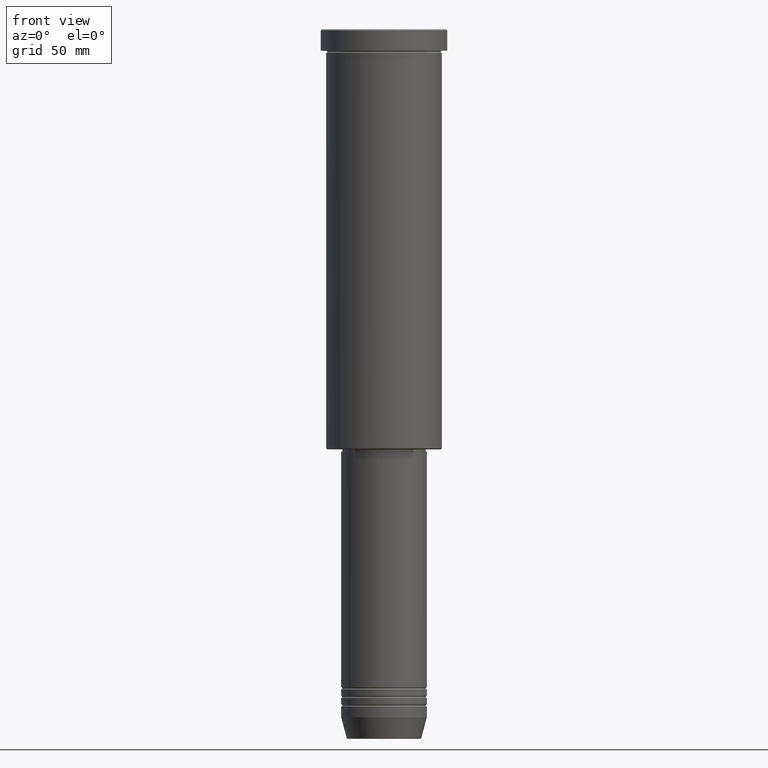
[diagram: clean part render]
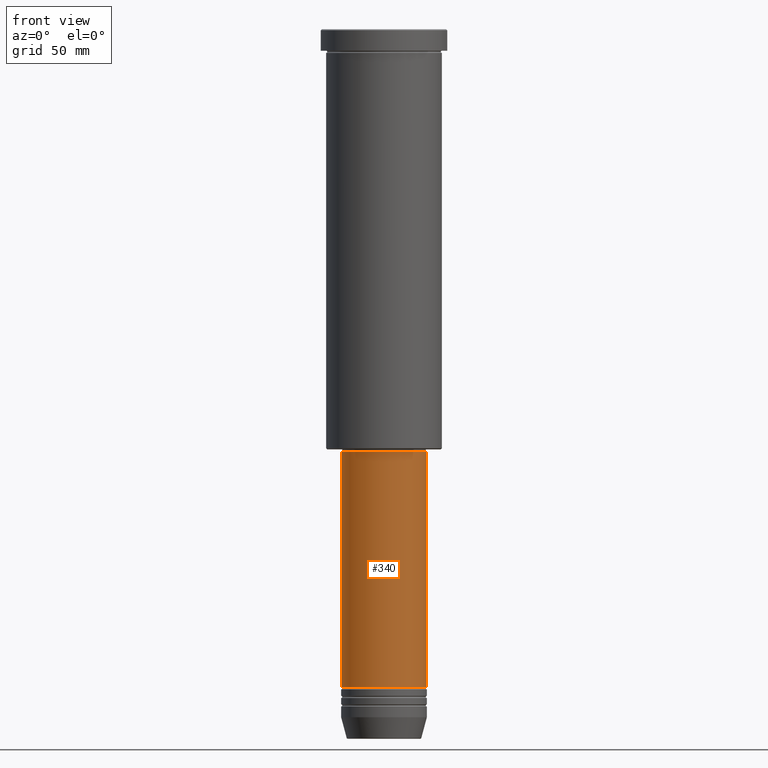
[diagram: same view with one face highlighted and labeled with its STEP entity id]
A machine part, front view. The second image highlights one B-rep face of the part: STEP entity #340.
In plain terms, the highlighted cylindrical surface (partial cylindrical patch) has radius 20 mm, axis along (-0, -0, 1).
Its self-contained STEP definition (entity closure, byte-faithful):
#31 = DIRECTION ( 'NONE',  ( 1.000000000000000000, 0.000000000000000000, 0.000000000000000000 ) ) ;
#63 = CARTESIAN_POINT ( 'NONE',  ( 19.99999999999999645, 0.000000000000000000, 0.000000000000000000 ) ) ;
#77 = DIRECTION ( 'NONE',  ( 1.000000000000000000, 0.000000000000000000, 0.000000000000000000 ) ) ;
#79 = VERTEX_POINT ( 'NONE', #936 ) ;
#93 = AXIS2_PLACEMENT_3D ( 'NONE', #624, #517, #77 ) ;
#216 = FACE_OUTER_BOUND ( 'NONE', #408, .T. ) ;
#217 = CIRCLE ( 'NONE', #93, 20.00000000000000000 ) ;
#261 = EDGE_CURVE ( 'NONE', #79, #1009, #991, .T. ) ;
#263 = VERTEX_POINT ( 'NONE', #1051 ) ;
#303 = CARTESIAN_POINT ( 'NONE',  ( -20.00000000000000000, 2.449293598294706513E-15, -306.9999999999999432 ) ) ;
#340 = ADVANCED_FACE ( 'NONE', ( #216 ), #472, .T. ) ;
#389 = CARTESIAN_POINT ( 'NONE',  ( 0.000000000000000000, 0.000000000000000000, -196.9999999999999147 ) ) ;
#408 = EDGE_LOOP ( 'NONE', ( #832, #810, #817, #578 ) ) ;
#410 = DIRECTION ( 'NONE',  ( -0.000000000000000000, -0.000000000000000000, 1.000000000000000000 ) ) ;
#418 = AXIS2_PLACEMENT_3D ( 'NONE', #389, #682, #858 ) ;
#472 = CYLINDRICAL_SURFACE ( 'NONE', #733, 19.99999999999999645 ) ;
#488 = LINE ( 'NONE', #63, #1064 ) ;
#517 = DIRECTION ( 'NONE',  ( -0.000000000000000000, -0.000000000000000000, 1.000000000000000000 ) ) ;
#521 = DIRECTION ( 'NONE',  ( -0.000000000000000000, -0.000000000000000000, 1.000000000000000000 ) ) ;
#559 = CARTESIAN_POINT ( 'NONE',  ( 19.99999999999999645, 0.000000000000000000, -196.9999999999999147 ) ) ;
#577 = DIRECTION ( 'NONE',  ( -0.000000000000000000, -0.000000000000000000, 1.000000000000000000 ) ) ;
#578 = ORIENTED_EDGE ( 'NONE', *, *, #261, .F. ) ;
#579 = VERTEX_POINT ( 'NONE', #303 ) ;
#618 = CARTESIAN_POINT ( 'NONE',  ( -19.99999999999999645, 2.449293598294706119E-15, 0.000000000000000000 ) ) ;
#624 = CARTESIAN_POINT ( 'NONE',  ( 0.000000000000000000, 0.000000000000000000, -306.9999999999999432 ) ) ;
#666 = EDGE_CURVE ( 'NONE', #263, #1009, #488, .T. ) ;
#682 = DIRECTION ( 'NONE',  ( -0.000000000000000000, -0.000000000000000000, 1.000000000000000000 ) ) ;
#726 = LINE ( 'NONE', #618, #953 ) ;
#733 = AXIS2_PLACEMENT_3D ( 'NONE', #851, #577, #31 ) ;
#810 = ORIENTED_EDGE ( 'NONE', *, *, #938, .T. ) ;
#817 = ORIENTED_EDGE ( 'NONE', *, *, #666, .T. ) ;
#832 = ORIENTED_EDGE ( 'NONE', *, *, #850, .F. ) ;
#850 = EDGE_CURVE ( 'NONE', #579, #79, #726, .T. ) ;
#851 = CARTESIAN_POINT ( 'NONE',  ( 0.000000000000000000, 0.000000000000000000, 0.000000000000000000 ) ) ;
#858 = DIRECTION ( 'NONE',  ( 1.000000000000000000, 0.000000000000000000, 0.000000000000000000 ) ) ;
#936 = CARTESIAN_POINT ( 'NONE',  ( -19.99999999999999645, 2.449293598294706119E-15, -196.9999999999999147 ) ) ;
#938 = EDGE_CURVE ( 'NONE', #579, #263, #217, .T. ) ;
#953 = VECTOR ( 'NONE', #521, 1000.000000000000000 ) ;
#991 = CIRCLE ( 'NONE', #418, 19.99999999999999645 ) ;
#1009 = VERTEX_POINT ( 'NONE', #559 ) ;
#1051 = CARTESIAN_POINT ( 'NONE',  ( 20.00000000000000000, 0.000000000000000000, -306.9999999999999432 ) ) ;
#1064 = VECTOR ( 'NONE', #410, 1000.000000000000000 ) ;